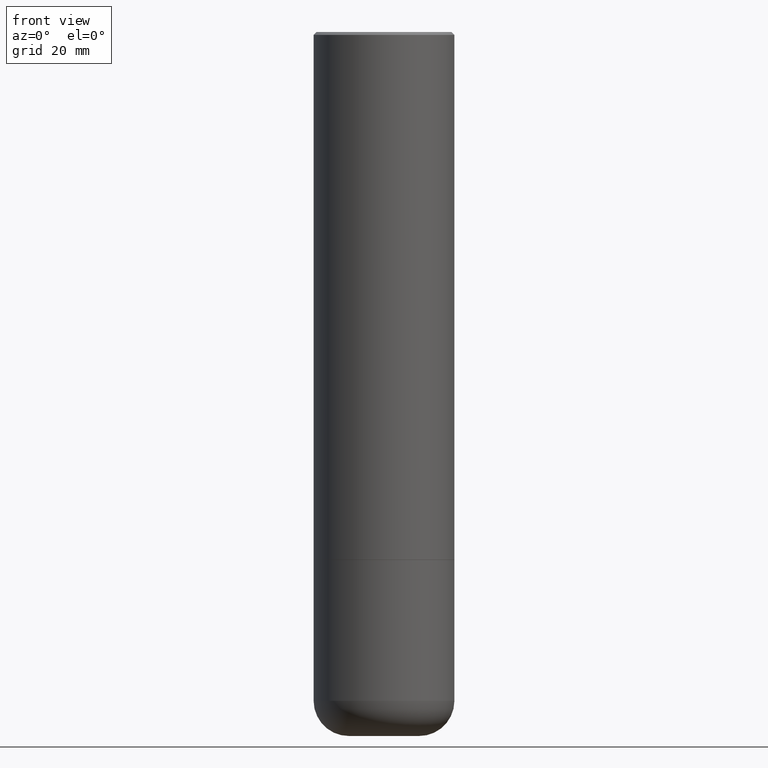
[diagram: clean part render]
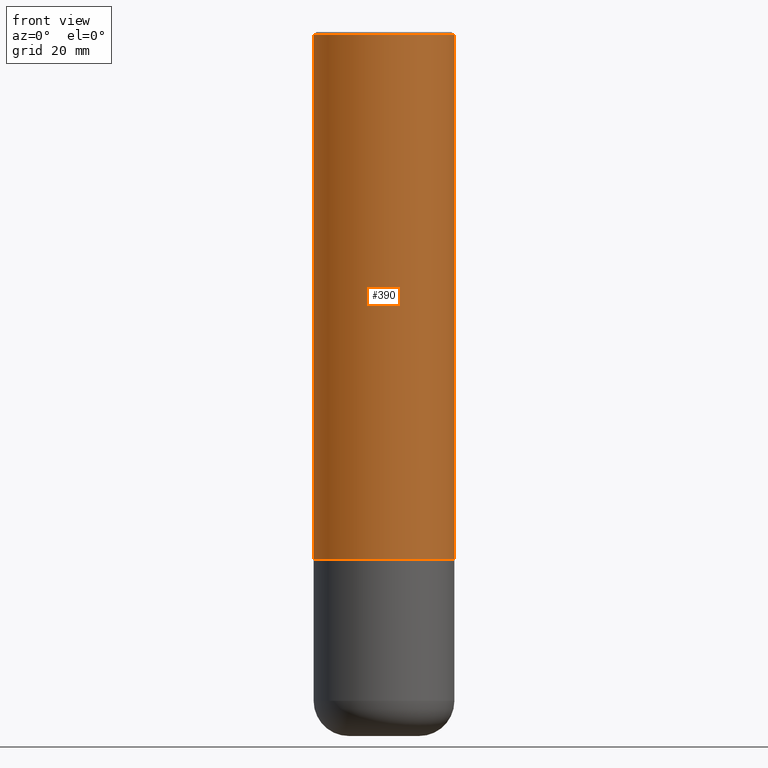
[diagram: same view with one face highlighted and labeled with its STEP entity id]
A machine part, front view. The second image highlights one B-rep face of the part: STEP entity #390.
In plain terms, the highlighted cylindrical surface (partial cylindrical patch) has radius 12.7 mm, axis along (-0, 0, 1).
Its self-contained STEP definition (entity closure, byte-faithful):
#37 = VECTOR ( 'NONE', #147, 39.37007874015748143 ) ;
#41 = CARTESIAN_POINT ( 'NONE',  ( 0.4999999999999990563, -3.500078625662622769E-15, -0.02000000000000020164 ) ) ;
#76 = CARTESIAN_POINT ( 'NONE',  ( 0.4999999999999994449, -1.658104487816608303E-14, -3.749000000000000554 ) ) ;
#79 = EDGE_CURVE ( 'NONE', #123, #349, #120, .T. ) ;
#96 = VECTOR ( 'NONE', #412, 39.37007874015748143 ) ;
#109 = CARTESIAN_POINT ( 'NONE',  ( 9.168062554388078877E-29, -1.308956353932295441E-14, -3.749000000000000554 ) ) ;
#120 = LINE ( 'NONE', #371, #96 ) ;
#123 = VERTEX_POINT ( 'NONE', #76 ) ;
#125 = AXIS2_PLACEMENT_3D ( 'NONE', #109, #276, #383 ) ;
#137 = ORIENTED_EDGE ( 'NONE', *, *, #144, .F. ) ;
#144 = EDGE_CURVE ( 'NONE', #447, #349, #449, .T. ) ;
#147 = DIRECTION ( 'NONE',  ( -2.445468806185136877E-29, 3.491481338843145188E-15, 1.000000000000000000 ) ) ;
#161 = FACE_OUTER_BOUND ( 'NONE', #468, .T. ) ;
#187 = AXIS2_PLACEMENT_3D ( 'NONE', #252, #294, #292 ) ;
#195 = VERTEX_POINT ( 'NONE', #404 ) ;
#201 = AXIS2_PLACEMENT_3D ( 'NONE', #229, #302, #453 ) ;
#229 = CARTESIAN_POINT ( 'NONE',  ( 0.000000000000000000, 0.000000000000000000, 0.000000000000000000 ) ) ;
#252 = CARTESIAN_POINT ( 'NONE',  ( 4.890937612370322204E-31, -6.982962677686361867E-17, -0.02000000000000020164 ) ) ;
#276 = DIRECTION ( 'NONE',  ( -2.445468806185136597E-29, 3.491481338843145583E-15, 1.000000000000000000 ) ) ;
#278 = ORIENTED_EDGE ( 'NONE', *, *, #477, .T. ) ;
#292 = DIRECTION ( 'NONE',  ( 1.000000000000000000, -6.982962677686266711E-15, 0.000000000000000000 ) ) ;
#294 = DIRECTION ( 'NONE',  ( -2.445468806185136597E-29, 3.491481338843145583E-15, 1.000000000000000000 ) ) ;
#302 = DIRECTION ( 'NONE',  ( -2.445468806185136597E-29, 3.491481338843145583E-15, 1.000000000000000000 ) ) ;
#325 = CARTESIAN_POINT ( 'NONE',  ( -0.4999999999999992228, 3.552713678800495407E-15, -2.459467545127449248E-29 ) ) ;
#349 = VERTEX_POINT ( 'NONE', #41 ) ;
#358 = EDGE_CURVE ( 'NONE', #195, #447, #362, .T. ) ;
#362 = LINE ( 'NONE', #325, #37 ) ;
#371 = CARTESIAN_POINT ( 'NONE',  ( 0.4999999999999992228, -3.491481338843128228E-15, 2.438088387897963973E-29 ) ) ;
#383 = DIRECTION ( 'NONE',  ( 1.000000000000000000, -6.982962677686266711E-15, 0.000000000000000000 ) ) ;
#390 = ADVANCED_FACE ( 'NONE', ( #161 ), #448, .T. ) ;
#404 = CARTESIAN_POINT ( 'NONE',  ( -0.4999999999999994449, -3.026982904249409106E-15, -3.749000000000000554 ) ) ;
#409 = ORIENTED_EDGE ( 'NONE', *, *, #358, .F. ) ;
#412 = DIRECTION ( 'NONE',  ( -2.445468806185136877E-29, 3.491481338843145188E-15, 1.000000000000000000 ) ) ;
#419 = CARTESIAN_POINT ( 'NONE',  ( -0.4999999999999990563, 3.421651712066262957E-15, -0.02000000000000020164 ) ) ;
#421 = CIRCLE ( 'NONE', #125, 0.4999999999999994449 ) ;
#447 = VERTEX_POINT ( 'NONE', #419 ) ;
#448 = CYLINDRICAL_SURFACE ( 'NONE', #201, 0.4999999999999992228 ) ;
#449 = CIRCLE ( 'NONE', #187, 0.4999999999999990563 ) ;
#453 = DIRECTION ( 'NONE',  ( 1.000000000000000000, -6.982962677686267499E-15, 4.876176775795935793E-29 ) ) ;
#462 = ORIENTED_EDGE ( 'NONE', *, *, #79, .T. ) ;
#468 = EDGE_LOOP ( 'NONE', ( #409, #278, #462, #137 ) ) ;
#477 = EDGE_CURVE ( 'NONE', #195, #123, #421, .T. ) ;